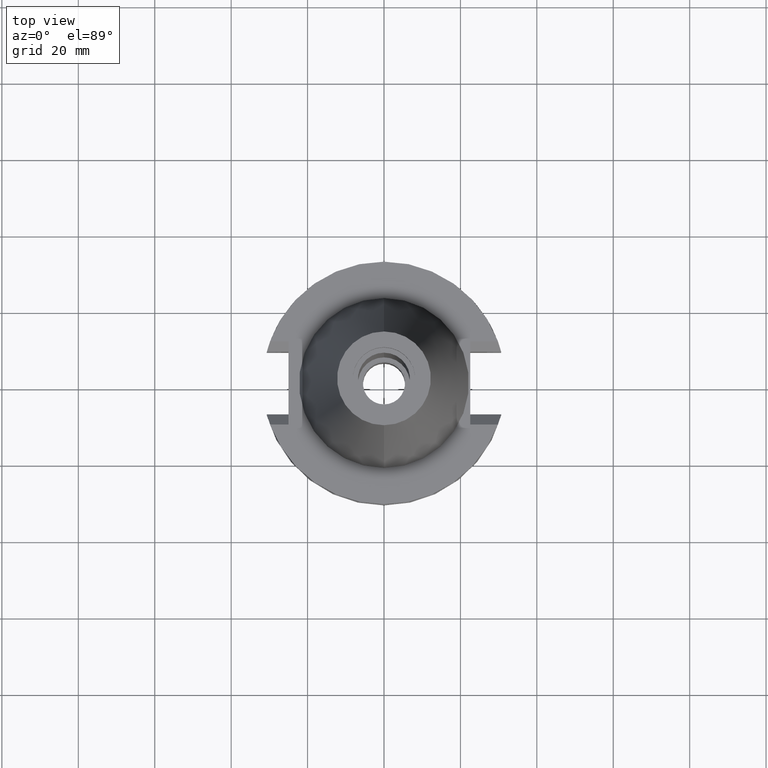
[diagram: clean part render]
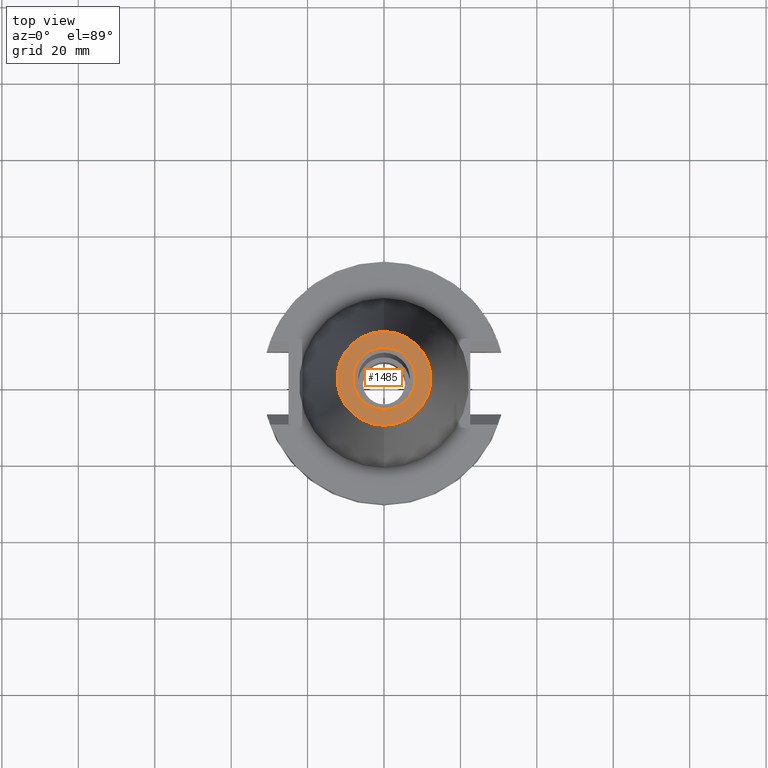
[diagram: same view with one face highlighted and labeled with its STEP entity id]
A machine part, top view. The second image highlights one B-rep face of the part: STEP entity #1485.
In plain terms, the highlighted planar face has unit normal (0, 0, -1).
Its self-contained STEP definition (entity closure, byte-faithful):
#17=CARTESIAN_POINT('',(0.E0,1.642557519356E-14,6.825E1));
#18=DIRECTION('',(0.E0,0.E0,-1.E0));
#19=DIRECTION('',(0.E0,-1.E0,0.E0));
#20=AXIS2_PLACEMENT_3D('',#17,#18,#19);
#26=CARTESIAN_POINT('',(0.E0,1.642557519356E-14,6.825E1));
#27=DIRECTION('',(0.E0,0.E0,-1.E0));
#28=DIRECTION('',(0.E0,1.E0,0.E0));
#29=AXIS2_PLACEMENT_3D('',#26,#27,#28);
#34=CARTESIAN_POINT('',(0.E0,2.164471368983E-14,6.825E1));
#35=DIRECTION('',(0.E0,0.E0,1.E0));
#36=DIRECTION('',(0.E0,-1.E0,0.E0));
#37=AXIS2_PLACEMENT_3D('',#34,#35,#36);
#42=CARTESIAN_POINT('',(0.E0,2.164471368983E-14,6.825E1));
#43=DIRECTION('',(0.E0,0.E0,1.E0));
#44=DIRECTION('',(0.E0,1.E0,0.E0));
#45=AXIS2_PLACEMENT_3D('',#42,#43,#44);
#1258=CARTESIAN_POINT('',(0.E0,-1.227186888070E1,6.825E1));
#1259=CARTESIAN_POINT('',(0.E0,1.227186888070E1,6.825E1));
#1260=VERTEX_POINT('',#1258);
#1261=VERTEX_POINT('',#1259);
#1262=CARTESIAN_POINT('',(0.E0,-8.16E0,6.825E1));
#1263=CARTESIAN_POINT('',(0.E0,8.16E0,6.825E1));
#1264=VERTEX_POINT('',#1262);
#1265=VERTEX_POINT('',#1263);
#1468=CARTESIAN_POINT('',(0.E0,2.060468239565E-14,6.825E1));
#1469=DIRECTION('',(0.E0,0.E0,-1.E0));
#1470=DIRECTION('',(0.E0,-1.E0,0.E0));
#1471=AXIS2_PLACEMENT_3D('',#1468,#1469,#1470);
#1472=PLANE('',#1471);
#1474=ORIENTED_EDGE('',*,*,#1473,.T.);
#1476=ORIENTED_EDGE('',*,*,#1475,.T.);
#1477=EDGE_LOOP('',(#1474,#1476));
#1478=FACE_OUTER_BOUND('',#1477,.F.);
#1480=ORIENTED_EDGE('',*,*,#1479,.T.);
#1482=ORIENTED_EDGE('',*,*,#1481,.T.);
#1483=EDGE_LOOP('',(#1480,#1482));
#1484=FACE_BOUND('',#1483,.F.);
#21=CIRCLE('',#20,1.227186888070E1);
#30=CIRCLE('',#29,1.227186888070E1);
#38=CIRCLE('',#37,8.16E0);
#46=CIRCLE('',#45,8.16E0);
#1473=EDGE_CURVE('',#1260,#1261,#21,.T.);
#1475=EDGE_CURVE('',#1261,#1260,#30,.T.);
#1479=EDGE_CURVE('',#1264,#1265,#38,.T.);
#1481=EDGE_CURVE('',#1265,#1264,#46,.T.);
#1485=ADVANCED_FACE('',(#1478,#1484),#1472,.F.);